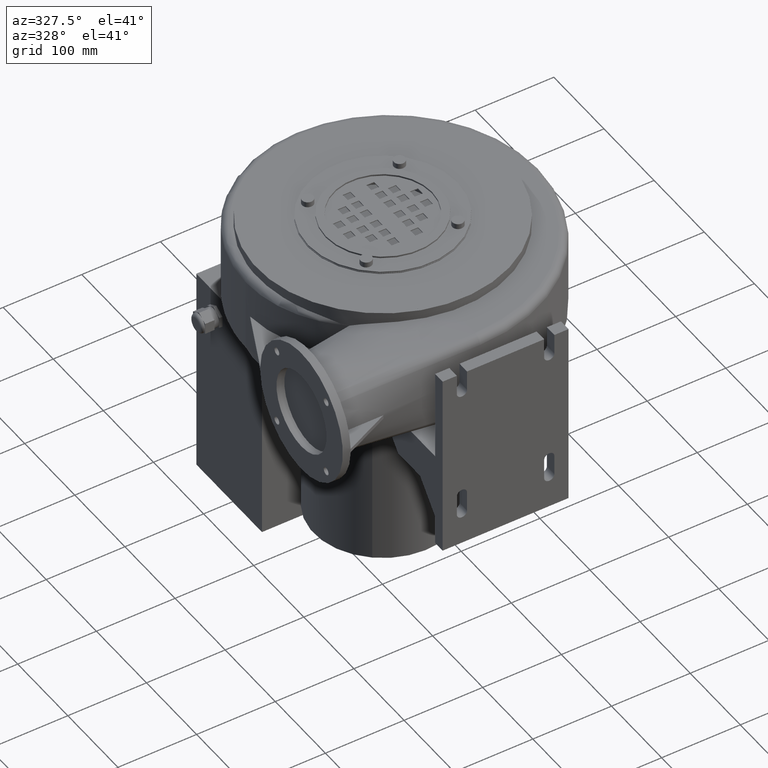
[diagram: clean part render]
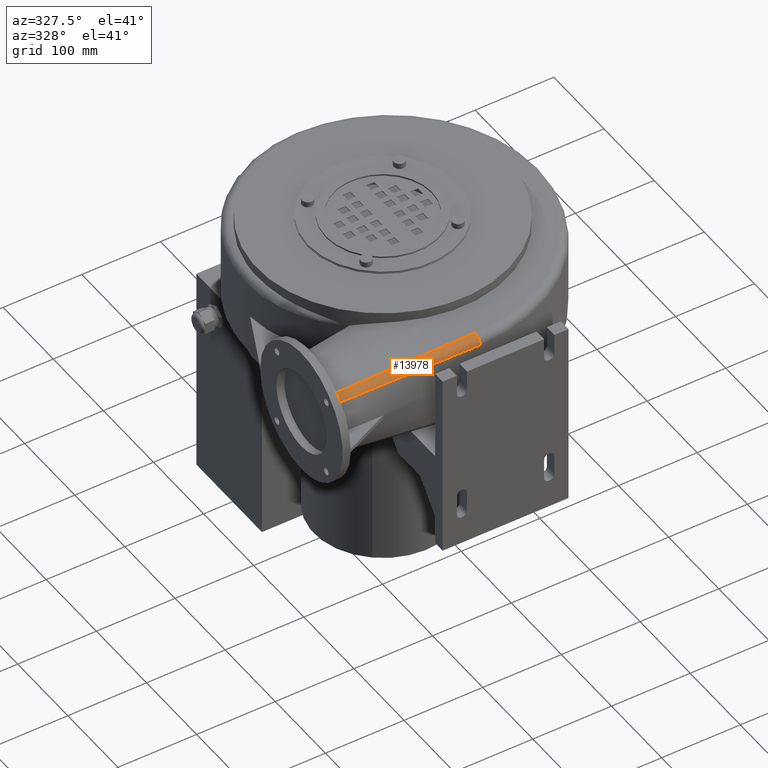
[diagram: same view with one face highlighted and labeled with its STEP entity id]
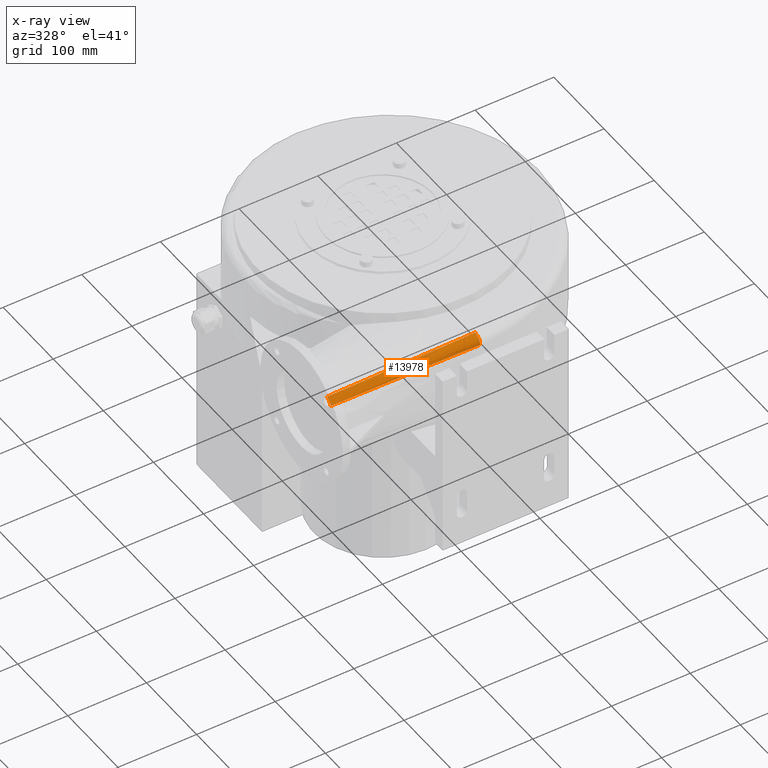
[diagram: x-ray of the same camera — body ghosted, the highlighted face saturated]
A machine part, auxiliary view. The second image highlights one B-rep face of the part: STEP entity #13978.
The next image is the same camera in x-ray: the body ghosted, the highlighted face saturated — about 0% of this face is hidden behind the body in this view.
In plain terms, the highlighted face is a freeform B-spline surface patch.
Its self-contained STEP definition (entity closure, byte-faithful):
#214=CIRCLE('',#14750,10.);
#221=CIRCLE('',#14763,55.);
#671=B_SPLINE_CURVE_WITH_KNOTS('',3,(#21399,#21400,#21401,#21402),
 .UNSPECIFIED.,.F.,.F.,(4,4),(0.,1.),.UNSPECIFIED.);
#676=B_SPLINE_CURVE_WITH_KNOTS('',3,(#21549,#21550,#21551,#21552),
 .UNSPECIFIED.,.F.,.F.,(4,4),(0.,1.),.UNSPECIFIED.);
#937=B_SPLINE_SURFACE_WITH_KNOTS('',3,3,((#21578,#21579,#21580,#21581),
(#21582,#21583,#21584,#21585),(#21586,#21587,#21588,#21589),(#21590,#21591,
#21592,#21593),(#21594,#21595,#21596,#21597),(#21598,#21599,#21600,#21601)),
 .UNSPECIFIED.,.F.,.F.,.F.,(4,1,1,4),(4,4),(0.,0.285714285714286,0.571428571428571,
1.),(0.,1.),.UNSPECIFIED.);
#1354=FACE_OUTER_BOUND('',#2171,.T.);
#2171=EDGE_LOOP('',(#10416,#10417,#10418,#10419));
#6003=VERTEX_POINT('',#21208);
#6006=VERTEX_POINT('',#21213);
#6023=VERTEX_POINT('',#21323);
#6024=VERTEX_POINT('',#21325);
#7598=EDGE_CURVE('',#6006,#6003,#214,.T.);
#7621=EDGE_CURVE('',#6023,#6024,#221,.T.);
#7639=EDGE_CURVE('',#6003,#6023,#671,.T.);
#7671=EDGE_CURVE('',#6006,#6024,#676,.T.);
#10416=ORIENTED_EDGE('',*,*,#7598,.F.);
#10417=ORIENTED_EDGE('',*,*,#7671,.T.);
#10418=ORIENTED_EDGE('',*,*,#7621,.F.);
#10419=ORIENTED_EDGE('',*,*,#7639,.F.);
#13978=ADVANCED_FACE('',(#1354),#937,.T.);
#14750=AXIS2_PLACEMENT_3D('',#21215,#16520,#16521);
#14763=AXIS2_PLACEMENT_3D('',#21326,#16556,#16557);
#16520=DIRECTION('center_axis',(1.,1.12908644836052E-16,1.22464679914736E-16));
#16521=DIRECTION('ref_axis',(1.12908644836053E-16,-1.,-1.29953312800048E-15));
#16556=DIRECTION('center_axis',(-1.,-1.12908644836052E-16,-1.22464679914736E-16));
#16557=DIRECTION('ref_axis',(1.22464679914736E-16,1.29953312800048E-15,
-1.));
#21208=CARTESIAN_POINT('',(12.4358485344729,-75.2121128264628,114.995715093864));
#21213=CARTESIAN_POINT('',(12.4358485344729,-65.2121128264628,124.995715093864));
#21215=CARTESIAN_POINT('Origin',(12.4358485344729,-65.2121128264628,114.995715093864));
#21323=CARTESIAN_POINT('',(-169.564151465527,-63.1232289417065,104.39972814095));
#21325=CARTESIAN_POINT('',(-169.564151465527,-55.5549539805678,112.136948810448));
#21326=CARTESIAN_POINT('Origin',(-169.564151465527,-20.2121128264628,69.9957150938642));
#21399=CARTESIAN_POINT('Ctrl Pts',(12.4358485344729,-75.2121128264628,114.995715093864));
#21400=CARTESIAN_POINT('Ctrl Pts',(-48.2308181321937,-71.1824848648774,
111.463719442893));
#21401=CARTESIAN_POINT('Ctrl Pts',(-108.89748479886,-67.1528569032919,107.931723791922));
#21402=CARTESIAN_POINT('Ctrl Pts',(-169.564151465527,-63.1232289417065,
104.39972814095));
#21549=CARTESIAN_POINT('Ctrl Pts',(12.4358485344729,-65.2121128264628,124.995715093864));
#21550=CARTESIAN_POINT('Ctrl Pts',(-48.2308181321937,-61.9930598778311,
120.709459666059));
#21551=CARTESIAN_POINT('Ctrl Pts',(-108.89748479886,-58.7740069291995,116.423204238253));
#21552=CARTESIAN_POINT('Ctrl Pts',(-169.564151465527,-55.5549539805678,
112.136948810448));
#21578=CARTESIAN_POINT('Ctrl Pts',(12.4358485344729,-75.2121128264628,114.995715093864));
#21579=CARTESIAN_POINT('Ctrl Pts',(-48.2308181321937,-71.1824848648774,
111.463719442893));
#21580=CARTESIAN_POINT('Ctrl Pts',(-108.89748479886,-67.1528569032919,107.931723791922));
#21581=CARTESIAN_POINT('Ctrl Pts',(-169.564151465527,-63.1232289417065,
104.39972814095));
#21582=CARTESIAN_POINT('Ctrl Pts',(12.4358485344729,-75.2121128264628,116.491711595574));
#21583=CARTESIAN_POINT('Ctrl Pts',(-48.2308181321939,-70.9666974454349,
112.729214976958));
#21584=CARTESIAN_POINT('Ctrl Pts',(-108.89748479886,-66.722812819486,108.96775144591));
#21585=CARTESIAN_POINT('Ctrl Pts',(-169.564151465527,-62.4773974384581,
105.205254827295));
#21586=CARTESIAN_POINT('Ctrl Pts',(12.4358485344729,-74.527383316226,119.476865040375));
#21587=CARTESIAN_POINT('Ctrl Pts',(-48.2308181321936,-70.0644593777656,
115.24318423603));
#21588=CARTESIAN_POINT('Ctrl Pts',(-108.897484798861,-65.6032765938063,
111.013602202035));
#21589=CARTESIAN_POINT('Ctrl Pts',(-169.564151465527,-61.1403526553459,
106.779921397691));
#21590=CARTESIAN_POINT('Ctrl Pts',(12.4358485344729,-71.1825654103804,123.683654018677));
#21591=CARTESIAN_POINT('Ctrl Pts',(-48.2308181321939,-67.0046207910947,
118.921987718927));
#21592=CARTESIAN_POINT('Ctrl Pts',(-108.89748479886,-62.8270905969145,114.161206986436));
#21593=CARTESIAN_POINT('Ctrl Pts',(-169.564151465527,-58.6491459776288,
109.399540686686));
#21594=CARTESIAN_POINT('Ctrl Pts',(12.4358485344729,-67.456107579027,124.995715093864));
#21595=CARTESIAN_POINT('Ctrl Pts',(-48.2308181321937,-63.8836945380472,
120.374269018399));
#21596=CARTESIAN_POINT('Ctrl Pts',(-108.89748479886,-60.3139787236188,115.763212134976));
#21597=CARTESIAN_POINT('Ctrl Pts',(-169.564151465527,-56.741565682639,111.141766059512));
#21598=CARTESIAN_POINT('Ctrl Pts',(12.4358485344729,-65.2121128264628,124.995715093864));
#21599=CARTESIAN_POINT('Ctrl Pts',(-48.2308181321937,-61.9930598778312,
120.709459666059));
#21600=CARTESIAN_POINT('Ctrl Pts',(-108.89748479886,-58.7740069291995,116.423204238253));
#21601=CARTESIAN_POINT('Ctrl Pts',(-169.564151465527,-55.5549539805678,
112.136948810448));